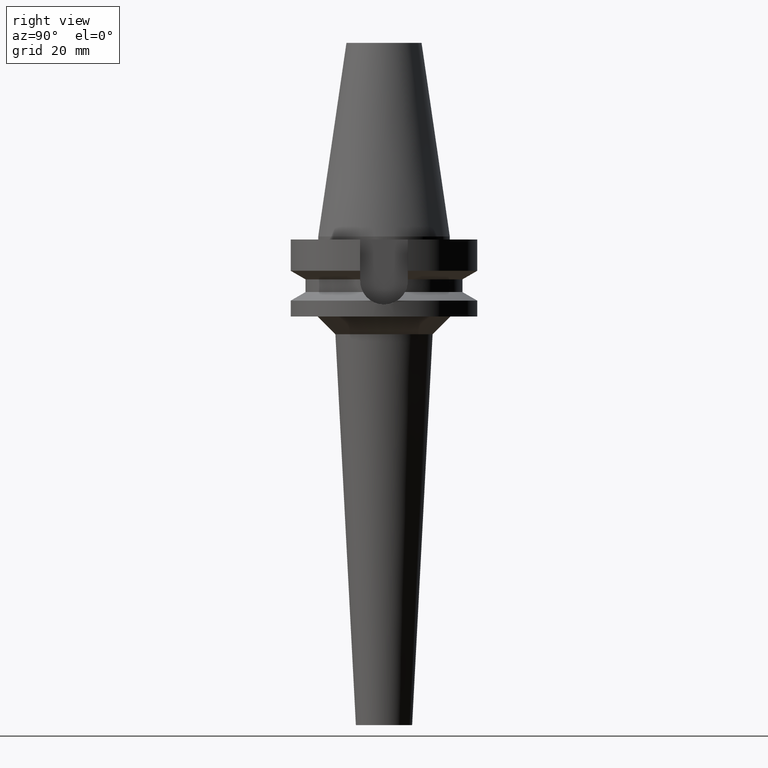
[diagram: clean part render]
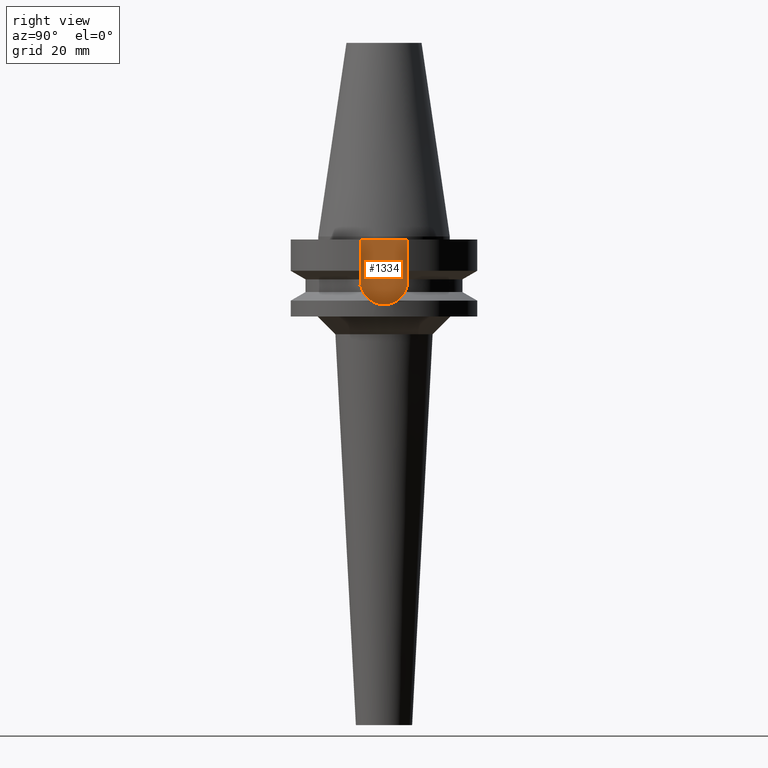
[diagram: same view with one face highlighted and labeled with its STEP entity id]
A machine part, right view. The second image highlights one B-rep face of the part: STEP entity #1334.
In plain terms, the highlighted planar face has unit normal (1, 0, 0).
Its self-contained STEP definition (entity closure, byte-faithful):
#124=DIRECTION('',(0.E0,-1.E0,0.E0));
#125=VECTOR('',#124,1.61E1);
#126=CARTESIAN_POINT('',(2.25E1,8.05E0,-1.E0));
#127=LINE('',#126,#125);
#307=DIRECTION('',(0.E0,0.E0,-1.E0));
#308=VECTOR('',#307,1.395E1);
#309=CARTESIAN_POINT('',(2.25E1,8.05E0,-1.E0));
#310=LINE('',#309,#308);
#314=CARTESIAN_POINT('',(2.25E1,0.E0,-1.495E1));
#315=DIRECTION('',(-1.E0,0.E0,0.E0));
#316=DIRECTION('',(0.E0,1.E0,0.E0));
#317=AXIS2_PLACEMENT_3D('',#314,#315,#316);
#322=CARTESIAN_POINT('',(2.25E1,0.E0,-1.495E1));
#323=DIRECTION('',(-1.E0,0.E0,0.E0));
#324=DIRECTION('',(0.E0,0.E0,-1.E0));
#325=AXIS2_PLACEMENT_3D('',#322,#323,#324);
#330=DIRECTION('',(0.E0,0.E0,1.E0));
#331=VECTOR('',#330,1.395E1);
#332=CARTESIAN_POINT('',(2.25E1,-8.05E0,-1.495E1));
#333=LINE('',#332,#331);
#1031=CARTESIAN_POINT('',(2.25E1,-8.05E0,-1.495E1));
#1032=VERTEX_POINT('',#1031);
#1033=CARTESIAN_POINT('',(2.25E1,0.E0,-2.3E1));
#1034=VERTEX_POINT('',#1033);
#1035=CARTESIAN_POINT('',(2.25E1,8.05E0,-1.495E1));
#1036=VERTEX_POINT('',#1035);
#1083=CARTESIAN_POINT('',(2.25E1,8.05E0,-1.E0));
#1084=VERTEX_POINT('',#1083);
#1085=CARTESIAN_POINT('',(2.25E1,-8.05E0,-1.E0));
#1086=VERTEX_POINT('',#1085);
#1319=CARTESIAN_POINT('',(2.25E1,0.E0,0.E0));
#1320=DIRECTION('',(1.E0,0.E0,0.E0));
#1321=DIRECTION('',(0.E0,0.E0,-1.E0));
#1322=AXIS2_PLACEMENT_3D('',#1319,#1320,#1321);
#1323=PLANE('',#1322);
#1324=ORIENTED_EDGE('',*,*,#1196,.F.);
#1326=ORIENTED_EDGE('',*,*,#1325,.T.);
#1328=ORIENTED_EDGE('',*,*,#1327,.T.);
#1330=ORIENTED_EDGE('',*,*,#1329,.T.);
#1331=ORIENTED_EDGE('',*,*,#1312,.T.);
#1332=EDGE_LOOP('',(#1324,#1326,#1328,#1330,#1331));
#1333=FACE_OUTER_BOUND('',#1332,.F.);
#318=CIRCLE('',#317,8.05E0);
#326=CIRCLE('',#325,8.05E0);
#1196=EDGE_CURVE('',#1084,#1086,#127,.T.);
#1312=EDGE_CURVE('',#1032,#1086,#333,.T.);
#1325=EDGE_CURVE('',#1084,#1036,#310,.T.);
#1327=EDGE_CURVE('',#1036,#1034,#318,.T.);
#1329=EDGE_CURVE('',#1034,#1032,#326,.T.);
#1334=ADVANCED_FACE('',(#1333),#1323,.T.);